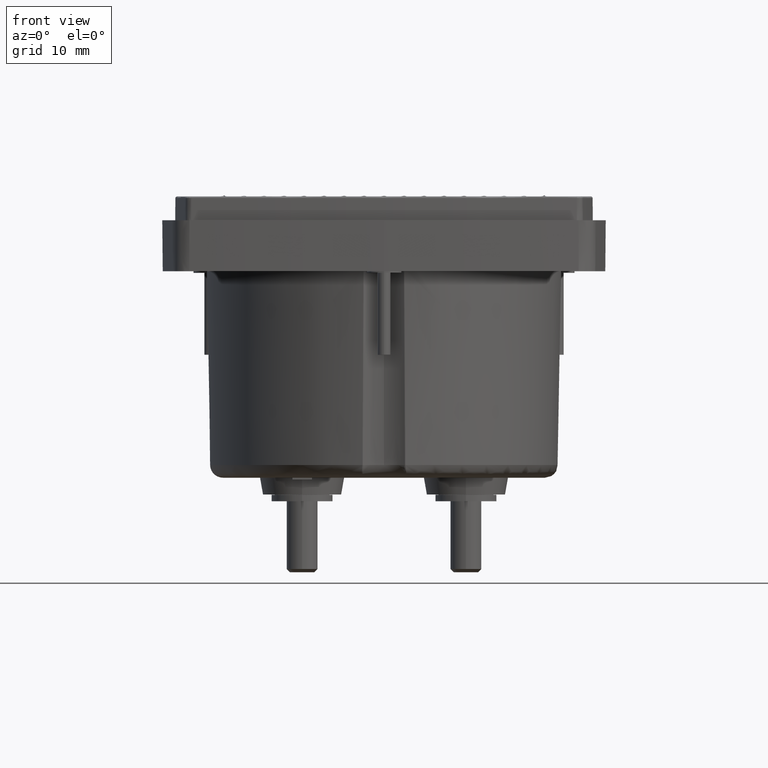
[diagram: clean part render]
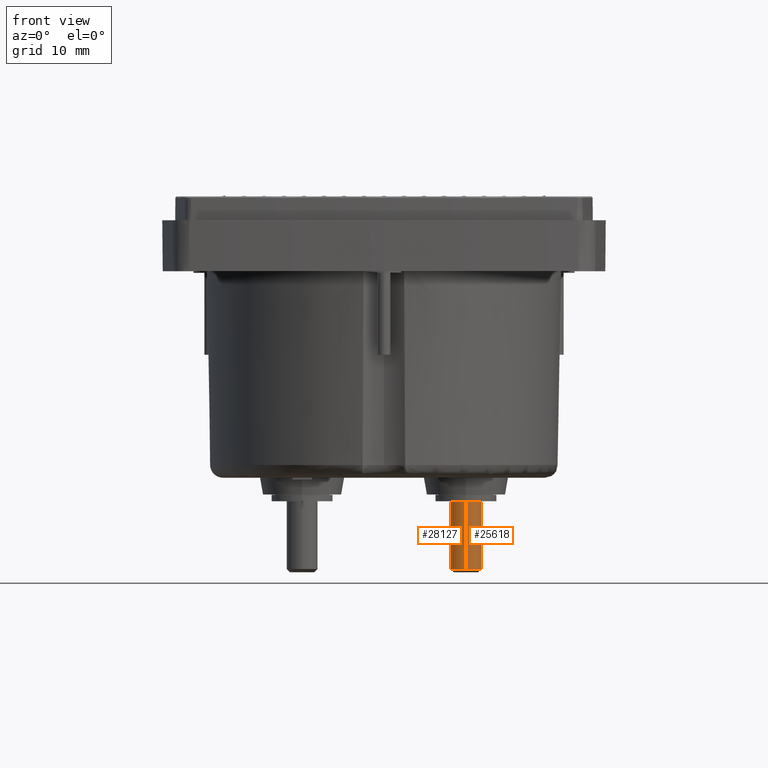
[diagram: same view with one multi-face feature highlighted, each face labeled with its STEP entity id]
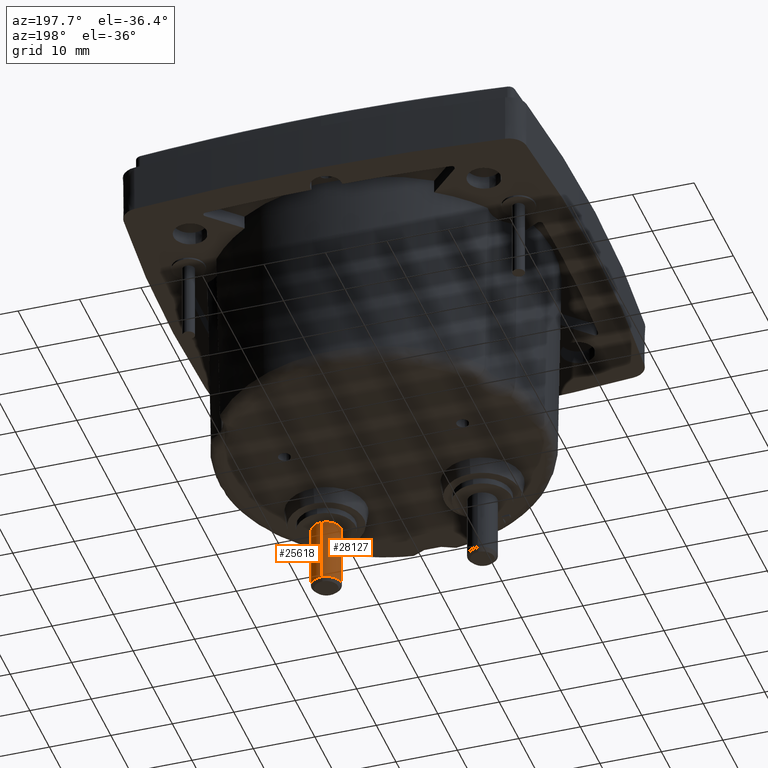
[diagram: same view with one multi-face feature highlighted, each face labeled with its STEP entity id]
A machine part, front view. The highlighted faces form ONE feature: a constant-radius fillet chain: 2 tangent blend faces with common blend radius 2.4 mm. The faces share edges in the B-rep.
A second angle (auxiliary view) of the same feature is appended — it is thin or edge-on in the first view.
Their STEP definitions:
[1] entity #25618 (Cylinder):
#453 = ORIENTED_EDGE ( 'NONE', *, *, #552, .F. ) ;
#552 = EDGE_CURVE ( 'NONE', #42653, #44624, #46073, .T. ) ;
#2766 = CARTESIAN_POINT ( 'NONE',  ( 1.070428637572283570, -0.7133645112928898024, -1.419291732283464613 ) ) ;
#2999 = DIRECTION ( 'NONE',  ( 0.000000000000000000, 0.000000000000000000, -1.000000000000000000 ) ) ;
#4865 = DIRECTION ( 'NONE',  ( -0.000000000000000000, -0.000000000000000000, 1.000000000000000000 ) ) ;
#6803 = DIRECTION ( 'NONE',  ( 0.000000000000000000, 1.000000000000000000, 0.000000000000000000 ) ) ;
#7056 = DIRECTION ( 'NONE',  ( -0.000000000000000000, -0.000000000000000000, 1.000000000000000000 ) ) ;
#7812 = CARTESIAN_POINT ( 'NONE',  ( 1.070428637572283570, -0.6188763223165119065, -1.419291732283464613 ) ) ;
#10803 = VECTOR ( 'NONE', #47467, 39.37007874015748143 ) ;
#11190 = CIRCLE ( 'NONE', #47252, 0.09448818897637792369 ) ;
#11597 = AXIS2_PLACEMENT_3D ( 'NONE', #21919, #2999, #36390 ) ;
#12226 = EDGE_CURVE ( 'NONE', #25673, #44624, #45607, .T. ) ;
#13828 = FACE_OUTER_BOUND ( 'NONE', #26033, .T. ) ;
#15645 = VERTEX_POINT ( 'NONE', #37463 ) ;
#16105 = ORIENTED_EDGE ( 'NONE', *, *, #47288, .F. ) ;
#17404 = AXIS2_PLACEMENT_3D ( 'NONE', #39972, #7056, #6803 ) ;
#18251 = CARTESIAN_POINT ( 'NONE',  ( 1.070428637572283570, -0.7133645112596344040, -1.832677559055118310 ) ) ;
#20498 = ORIENTED_EDGE ( 'NONE', *, *, #12226, .T. ) ;
#21308 = ORIENTED_EDGE ( 'NONE', *, *, #39178, .T. ) ;
#21310 = CARTESIAN_POINT ( 'NONE',  ( 1.070428637572283570, -0.5243881333401340106, -1.419291732283464613 ) ) ;
#21919 = CARTESIAN_POINT ( 'NONE',  ( 1.070428637572283570, -0.6188763223165119065, -1.419291732283464613 ) ) ;
#25618 = ADVANCED_FACE ( 'NONE', ( #13828 ), #36623, .T. ) ;
#25673 = VERTEX_POINT ( 'NONE', #18251 ) ;
#26033 = EDGE_LOOP ( 'NONE', ( #16105, #21308, #20498, #453 ) ) ;
#29065 = LINE ( 'NONE', #2766, #10803 ) ;
#32259 = CARTESIAN_POINT ( 'NONE',  ( 1.070428637572283570, -0.5243881333733894090, -1.832677559055118310 ) ) ;
#34558 = DIRECTION ( 'NONE',  ( 0.000000000000000000, 0.000000000000000000, -1.000000000000000000 ) ) ;
#35281 = CARTESIAN_POINT ( 'NONE',  ( 1.070428637572283570, -0.5243881333401340106, -1.419291732283464613 ) ) ;
#36365 = VECTOR ( 'NONE', #34558, 39.37007874015748143 ) ;
#36390 = DIRECTION ( 'NONE',  ( 0.000000000000000000, 1.000000000000000000, 0.000000000000000000 ) ) ;
#36623 = CYLINDRICAL_SURFACE ( 'NONE', #11597, 0.09448818897637792369 ) ;
#37463 = CARTESIAN_POINT ( 'NONE',  ( 1.070428637572283570, -0.7133645112928898024, -1.419291732283464613 ) ) ;
#39178 = EDGE_CURVE ( 'NONE', #15645, #25673, #29065, .T. ) ;
#39972 = CARTESIAN_POINT ( 'NONE',  ( 1.070428637572283570, -0.6188763223165119065, -1.832677559055118310 ) ) ;
#41704 = DIRECTION ( 'NONE',  ( 0.000000000000000000, 1.000000000000000000, 0.000000000000000000 ) ) ;
#42653 = VERTEX_POINT ( 'NONE', #21310 ) ;
#44624 = VERTEX_POINT ( 'NONE', #32259 ) ;
#45607 = CIRCLE ( 'NONE', #17404, 0.09448818897637792369 ) ;
#46073 = LINE ( 'NONE', #35281, #36365 ) ;
#47252 = AXIS2_PLACEMENT_3D ( 'NONE', #7812, #4865, #41704 ) ;
#47288 = EDGE_CURVE ( 'NONE', #15645, #42653, #11190, .T. ) ;
#47467 = DIRECTION ( 'NONE',  ( 0.000000000000000000, 0.000000000000000000, -1.000000000000000000 ) ) ;
[2] entity #28127 (Cylinder):
#552 = EDGE_CURVE ( 'NONE', #42653, #44624, #46073, .T. ) ;
#586 = DIRECTION ( 'NONE',  ( 0.000000000000000000, 1.000000000000000000, 0.000000000000000000 ) ) ;
#2766 = CARTESIAN_POINT ( 'NONE',  ( 1.070428637572283570, -0.7133645112928898024, -1.419291732283464613 ) ) ;
#4058 = ORIENTED_EDGE ( 'NONE', *, *, #20361, .T. ) ;
#4785 = CARTESIAN_POINT ( 'NONE',  ( 1.070428637572283570, -0.6188763223165119065, -1.419291732283464613 ) ) ;
#5738 = DIRECTION ( 'NONE',  ( 0.000000000000000000, 0.000000000000000000, -1.000000000000000000 ) ) ;
#6342 = ORIENTED_EDGE ( 'NONE', *, *, #44457, .F. ) ;
#6886 = DIRECTION ( 'NONE',  ( 0.000000000000000000, 1.000000000000000000, 0.000000000000000000 ) ) ;
#7091 = AXIS2_PLACEMENT_3D ( 'NONE', #41024, #44937, #6886 ) ;
#7913 = CIRCLE ( 'NONE', #7091, 0.09448818897637792369 ) ;
#10803 = VECTOR ( 'NONE', #47467, 39.37007874015748143 ) ;
#15645 = VERTEX_POINT ( 'NONE', #37463 ) ;
#18251 = CARTESIAN_POINT ( 'NONE',  ( 1.070428637572283570, -0.7133645112596344040, -1.832677559055118310 ) ) ;
#18856 = ORIENTED_EDGE ( 'NONE', *, *, #39178, .F. ) ;
#20361 = EDGE_CURVE ( 'NONE', #44624, #25673, #7913, .T. ) ;
#21310 = CARTESIAN_POINT ( 'NONE',  ( 1.070428637572283570, -0.5243881333401340106, -1.419291732283464613 ) ) ;
#22098 = AXIS2_PLACEMENT_3D ( 'NONE', #4785, #34003, #586 ) ;
#24849 = CARTESIAN_POINT ( 'NONE',  ( 1.070428637572283570, -0.6188763223165119065, -1.419291732283464613 ) ) ;
#25673 = VERTEX_POINT ( 'NONE', #18251 ) ;
#26684 = EDGE_LOOP ( 'NONE', ( #18856, #6342, #45419, #4058 ) ) ;
#28127 = ADVANCED_FACE ( 'NONE', ( #35896 ), #47210, .T. ) ;
#29065 = LINE ( 'NONE', #2766, #10803 ) ;
#32259 = CARTESIAN_POINT ( 'NONE',  ( 1.070428637572283570, -0.5243881333733894090, -1.832677559055118310 ) ) ;
#34003 = DIRECTION ( 'NONE',  ( -0.000000000000000000, -0.000000000000000000, 1.000000000000000000 ) ) ;
#34558 = DIRECTION ( 'NONE',  ( 0.000000000000000000, 0.000000000000000000, -1.000000000000000000 ) ) ;
#35194 = DIRECTION ( 'NONE',  ( 0.000000000000000000, 1.000000000000000000, 0.000000000000000000 ) ) ;
#35281 = CARTESIAN_POINT ( 'NONE',  ( 1.070428637572283570, -0.5243881333401340106, -1.419291732283464613 ) ) ;
#35896 = FACE_OUTER_BOUND ( 'NONE', #26684, .T. ) ;
#36365 = VECTOR ( 'NONE', #34558, 39.37007874015748143 ) ;
#37463 = CARTESIAN_POINT ( 'NONE',  ( 1.070428637572283570, -0.7133645112928898024, -1.419291732283464613 ) ) ;
#39178 = EDGE_CURVE ( 'NONE', #15645, #25673, #29065, .T. ) ;
#41024 = CARTESIAN_POINT ( 'NONE',  ( 1.070428637572283570, -0.6188763223165119065, -1.832677559055118310 ) ) ;
#42653 = VERTEX_POINT ( 'NONE', #21310 ) ;
#43276 = CIRCLE ( 'NONE', #22098, 0.09448818897637792369 ) ;
#44457 = EDGE_CURVE ( 'NONE', #42653, #15645, #43276, .T. ) ;
#44624 = VERTEX_POINT ( 'NONE', #32259 ) ;
#44937 = DIRECTION ( 'NONE',  ( -0.000000000000000000, -0.000000000000000000, 1.000000000000000000 ) ) ;
#45419 = ORIENTED_EDGE ( 'NONE', *, *, #552, .T. ) ;
#46073 = LINE ( 'NONE', #35281, #36365 ) ;
#46153 = AXIS2_PLACEMENT_3D ( 'NONE', #24849, #5738, #35194 ) ;
#47210 = CYLINDRICAL_SURFACE ( 'NONE', #46153, 0.09448818897637792369 ) ;
#47467 = DIRECTION ( 'NONE',  ( 0.000000000000000000, 0.000000000000000000, -1.000000000000000000 ) ) ;